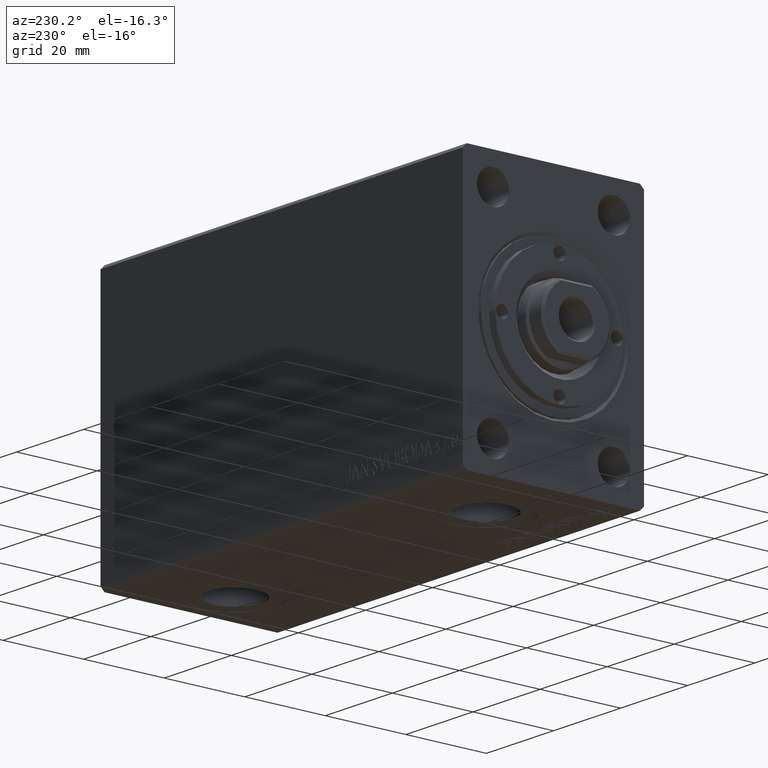
[diagram: clean part render]
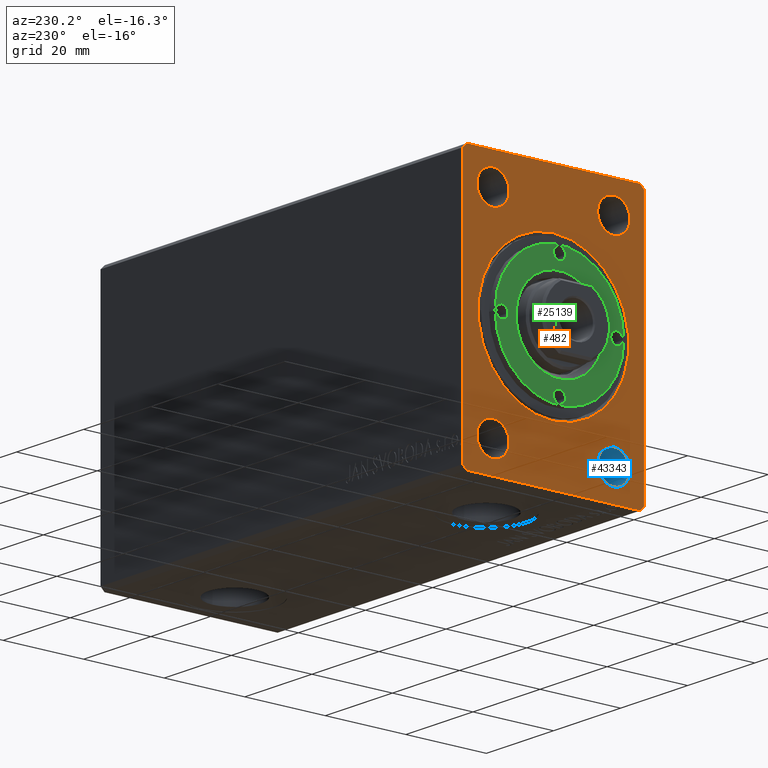
[diagram: same view with three faces highlighted in distinct colors, each labeled with its STEP entity id]
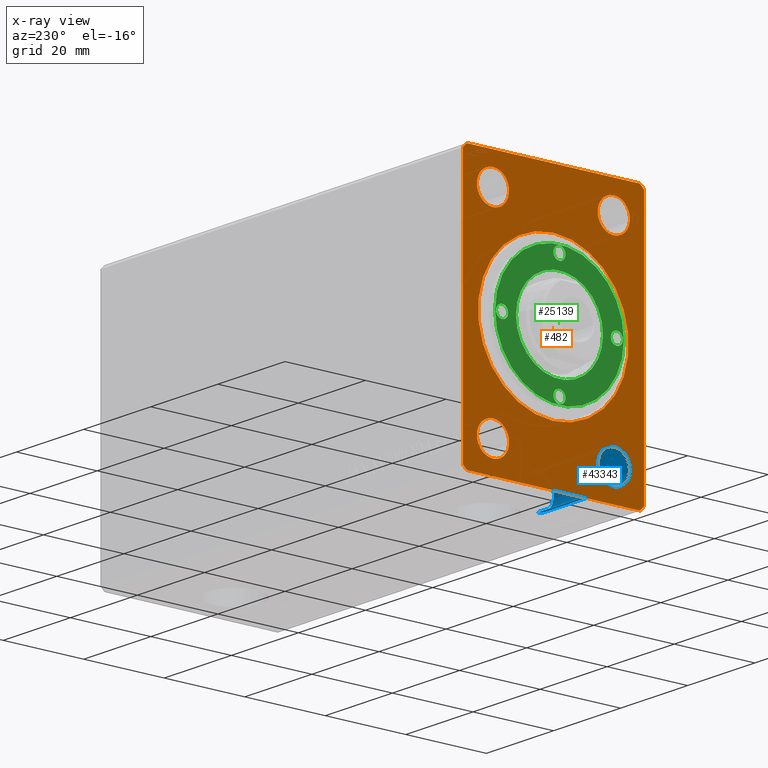
[diagram: x-ray of the same camera — body ghosted, the three highlighted faces saturated]
A machine part, auxiliary view with three faces highlighted in distinct colors.
The next image is the same camera in x-ray (body ghosted, the three faces saturated) — at least one of them is partly hidden behind the body in this view.
Their STEP definitions:

[orange] entity #482 — the highlighted planar face has unit normal (1, 0, 0).
#143 = EDGE_LOOP ( 'NONE', ( #20498, #15391 ) ) ;
#187 = EDGE_CURVE ( 'NONE', #36268, #21619, #4880, .T. ) ;
#482 = ADVANCED_FACE ( 'NONE', ( #41259, #10670, #868, #37937, #14461, #38152 ), #20950, .F. ) ;
#735 = VECTOR ( 'NONE', #25298, 1000.000000000000000 ) ;
#868 = FACE_BOUND ( 'NONE', #19703, .T. ) ;
#2572 = CIRCLE ( 'NONE', #33242, 4.000000000000000000 ) ;
#2690 = VECTOR ( 'NONE', #26168, 1000.000000000000000 ) ;
#2761 = CARTESIAN_POINT ( 'NONE',  ( 0.000000000000000000, -21.50000000000001421, 32.50000000000000000 ) ) ;
#2956 = CARTESIAN_POINT ( 'NONE',  ( 0.000000000000000000, 22.49999999999999645, -31.50000000000000000 ) ) ;
#3061 = CARTESIAN_POINT ( 'NONE',  ( 3.061616997868395467E-16, -14.99999999999999645, 20.99999999999999645 ) ) ;
#3231 = LINE ( 'NONE', #34270, #26568 ) ;
#4111 = DIRECTION ( 'NONE',  ( 1.000000000000000000, 0.000000000000000000, 0.000000000000000000 ) ) ;
#4681 = CARTESIAN_POINT ( 'NONE',  ( 3.061616997868395467E-16, 15.00000000000000355, -20.99999999999999289 ) ) ;
#4723 = EDGE_CURVE ( 'NONE', #29537, #34725, #42481, .T. ) ;
#4880 = CIRCLE ( 'NONE', #22009, 4.000000000000000000 ) ;
#5494 = VERTEX_POINT ( 'NONE', #9018 ) ;
#6039 = VERTEX_POINT ( 'NONE', #20932 ) ;
#6501 = DIRECTION ( 'NONE',  ( 0.000000000000000000, 0.000000000000000000, 1.000000000000000000 ) ) ;
#6515 = DIRECTION ( 'NONE',  ( -1.000000000000000000, -0.000000000000000000, -0.000000000000000000 ) ) ;
#7522 = EDGE_LOOP ( 'NONE', ( #23261, #38858 ) ) ;
#7642 = DIRECTION ( 'NONE',  ( 0.000000000000000000, 0.000000000000000000, -1.000000000000000000 ) ) ;
#7801 = ORIENTED_EDGE ( 'NONE', *, *, #20824, .T. ) ;
#8024 = VERTEX_POINT ( 'NONE', #25623 ) ;
#8497 = DIRECTION ( 'NONE',  ( -1.000000000000000000, -0.000000000000000000, -0.000000000000000000 ) ) ;
#9018 = CARTESIAN_POINT ( 'NONE',  ( 0.000000000000000000, -22.50000000000001776, 31.50000000000000000 ) ) ;
#9221 = DIRECTION ( 'NONE',  ( 0.000000000000000000, -0.7071067811865474617, 0.7071067811865474617 ) ) ;
#9626 = CARTESIAN_POINT ( 'NONE',  ( 3.061616997868395467E-16, -14.99999999999999645, -24.99999999999999645 ) ) ;
#9679 = VERTEX_POINT ( 'NONE', #21183 ) ;
#10035 = EDGE_CURVE ( 'NONE', #8024, #35781, #30736, .T. ) ;
#10312 = VECTOR ( 'NONE', #9221, 1000.000000000000114 ) ;
#10507 = DIRECTION ( 'NONE',  ( 0.000000000000000000, 0.000000000000000000, 1.000000000000000000 ) ) ;
#10610 = VERTEX_POINT ( 'NONE', #3061 ) ;
#10630 = CARTESIAN_POINT ( 'NONE',  ( 3.061616997868395467E-16, -14.99999999999999645, 24.99999999999999645 ) ) ;
#10670 = FACE_BOUND ( 'NONE', #7522, .T. ) ;
#11893 = DIRECTION ( 'NONE',  ( 0.000000000000000000, 0.000000000000000000, 1.000000000000000000 ) ) ;
#11995 = EDGE_CURVE ( 'NONE', #34725, #5494, #3231, .T. ) ;
#12354 = LINE ( 'NONE', #25983, #10312 ) ;
#12545 = CARTESIAN_POINT ( 'NONE',  ( 0.000000000000000000, -21.50000000000001776, -32.50000000000000711 ) ) ;
#12630 = ORIENTED_EDGE ( 'NONE', *, *, #26940, .T. ) ;
#12823 = ORIENTED_EDGE ( 'NONE', *, *, #14417, .F. ) ;
#12985 = LINE ( 'NONE', #12545, #2690 ) ;
#13209 = VERTEX_POINT ( 'NONE', #34539 ) ;
#13285 = CIRCLE ( 'NONE', #18992, 18.69999999999996732 ) ;
#13981 = CIRCLE ( 'NONE', #21824, 4.000000000000000000 ) ;
#14417 = EDGE_CURVE ( 'NONE', #36142, #29537, #12354, .T. ) ;
#14461 = FACE_BOUND ( 'NONE', #42011, .T. ) ;
#14556 = CARTESIAN_POINT ( 'NONE',  ( 3.061616997868395467E-16, -14.99999999999999645, -24.99999999999999645 ) ) ;
#14654 = ORIENTED_EDGE ( 'NONE', *, *, #20073, .F. ) ;
#15169 = CARTESIAN_POINT ( 'NONE',  ( 0.000000000000000000, 0.000000000000000000, 0.000000000000000000 ) ) ;
#15235 = CARTESIAN_POINT ( 'NONE',  ( 3.061616997868395467E-16, -14.99999999999999645, 24.99999999999999645 ) ) ;
#15391 = ORIENTED_EDGE ( 'NONE', *, *, #33871, .F. ) ;
#15652 = CARTESIAN_POINT ( 'NONE',  ( 3.061616997868395467E-16, 15.00000000000000355, 21.00000000000000000 ) ) ;
#16355 = DIRECTION ( 'NONE',  ( 0.000000000000000000, 0.7071067811865451302, -0.7071067811865500152 ) ) ;
#16655 = ORIENTED_EDGE ( 'NONE', *, *, #4723, .F. ) ;
#16765 = CARTESIAN_POINT ( 'NONE',  ( 3.061616997868395467E-16, 15.00000000000000355, 25.00000000000000000 ) ) ;
#17071 = CARTESIAN_POINT ( 'NONE',  ( 0.000000000000000000, 21.49999999999999645, 32.50000000000000000 ) ) ;
#17444 = ORIENTED_EDGE ( 'NONE', *, *, #10035, .F. ) ;
#17929 = EDGE_CURVE ( 'NONE', #35781, #8024, #2572, .T. ) ;
#18238 = EDGE_CURVE ( 'NONE', #31792, #30461, #13981, .T. ) ;
#18331 = EDGE_CURVE ( 'NONE', #30461, #31792, #38227, .T. ) ;
#18992 = AXIS2_PLACEMENT_3D ( 'NONE', #15169, #28818, #7642 ) ;
#19155 = CARTESIAN_POINT ( 'NONE',  ( 3.061616997868395467E-16, -14.99999999999999645, 28.99999999999999645 ) ) ;
#19703 = EDGE_LOOP ( 'NONE', ( #27040, #22118 ) ) ;
#20073 = EDGE_CURVE ( 'NONE', #42646, #36142, #40242, .T. ) ;
#20349 = DIRECTION ( 'NONE',  ( 0.000000000000000000, 0.7071067811865474617, 0.7071067811865474617 ) ) ;
#20498 = ORIENTED_EDGE ( 'NONE', *, *, #34308, .F. ) ;
#20824 = EDGE_CURVE ( 'NONE', #13209, #31104, #21891, .T. ) ;
#20932 = CARTESIAN_POINT ( 'NONE',  ( 0.000000000000000000, 21.49999999999999645, -32.50000000000000000 ) ) ;
#20950 = PLANE ( 'NONE',  #23455 ) ;
#21171 = DIRECTION ( 'NONE',  ( 0.000000000000000000, 0.000000000000000000, -1.000000000000000000 ) ) ;
#21183 = CARTESIAN_POINT ( 'NONE',  ( 0.000000000000000000, -22.50000000000001421, -31.50000000000000711 ) ) ;
#21432 = AXIS2_PLACEMENT_3D ( 'NONE', #16765, #30411, #23909 ) ;
#21619 = VERTEX_POINT ( 'NONE', #39842 ) ;
#21704 = DIRECTION ( 'NONE',  ( -1.000000000000000000, -0.000000000000000000, -0.000000000000000000 ) ) ;
#21757 = DIRECTION ( 'NONE',  ( 0.000000000000000000, 5.507058653894625853E-17, -1.000000000000000000 ) ) ;
#21824 = AXIS2_PLACEMENT_3D ( 'NONE', #14556, #21704, #28197 ) ;
#21891 = CIRCLE ( 'NONE', #29762, 18.69999999999996732 ) ;
#21895 = EDGE_CURVE ( 'NONE', #34299, #6039, #12985, .T. ) ;
#22009 = AXIS2_PLACEMENT_3D ( 'NONE', #27507, #6515, #10507 ) ;
#22118 = ORIENTED_EDGE ( 'NONE', *, *, #32129, .F. ) ;
#22230 = ORIENTED_EDGE ( 'NONE', *, *, #39689, .F. ) ;
#22857 = ORIENTED_EDGE ( 'NONE', *, *, #17929, .F. ) ;
#22874 = ORIENTED_EDGE ( 'NONE', *, *, #11995, .F. ) ;
#23261 = ORIENTED_EDGE ( 'NONE', *, *, #18331, .F. ) ;
#23455 = AXIS2_PLACEMENT_3D ( 'NONE', #24511, #28104, #21171 ) ;
#23909 = DIRECTION ( 'NONE',  ( 0.000000000000000000, 0.000000000000000000, 1.000000000000000000 ) ) ;
#24233 = ORIENTED_EDGE ( 'NONE', *, *, #21895, .F. ) ;
#24511 = CARTESIAN_POINT ( 'NONE',  ( 0.000000000000000000, 0.000000000000000000, 0.000000000000000000 ) ) ;
#25298 = DIRECTION ( 'NONE',  ( 0.000000000000000000, -1.000000000000000000, 0.000000000000000000 ) ) ;
#25537 = ORIENTED_EDGE ( 'NONE', *, *, #33900, .F. ) ;
#25623 = CARTESIAN_POINT ( 'NONE',  ( 3.061616997868395467E-16, 15.00000000000000355, 29.00000000000000000 ) ) ;
#25631 = CIRCLE ( 'NONE', #28476, 4.000000000000000000 ) ;
#25983 = CARTESIAN_POINT ( 'NONE',  ( 0.000000000000000000, 22.49999999999999645, 31.50000000000000000 ) ) ;
#26168 = DIRECTION ( 'NONE',  ( 0.000000000000000000, 1.000000000000000000, 1.613696256722610912E-16 ) ) ;
#26568 = VECTOR ( 'NONE', #37830, 1000.000000000000114 ) ;
#26836 = DIRECTION ( 'NONE',  ( -1.000000000000000000, -0.000000000000000000, -0.000000000000000000 ) ) ;
#26940 = EDGE_CURVE ( 'NONE', #31104, #13209, #13285, .T. ) ;
#27040 = ORIENTED_EDGE ( 'NONE', *, *, #187, .F. ) ;
#27436 = CARTESIAN_POINT ( 'NONE',  ( 3.061616997868395467E-16, -14.99999999999999645, -28.99999999999999645 ) ) ;
#27446 = CIRCLE ( 'NONE', #38849, 4.000000000000000000 ) ;
#27507 = CARTESIAN_POINT ( 'NONE',  ( 3.061616997868395467E-16, 15.00000000000000355, -24.99999999999999289 ) ) ;
#28018 = DIRECTION ( 'NONE',  ( 0.000000000000000000, 0.000000000000000000, -1.000000000000000000 ) ) ;
#28104 = DIRECTION ( 'NONE',  ( 1.000000000000000000, 0.000000000000000000, 0.000000000000000000 ) ) ;
#28197 = DIRECTION ( 'NONE',  ( 0.000000000000000000, 0.000000000000000000, 1.000000000000000000 ) ) ;
#28472 = LINE ( 'NONE', #38746, #42202 ) ;
#28476 = AXIS2_PLACEMENT_3D ( 'NONE', #15235, #32694, #11893 ) ;
#28818 = DIRECTION ( 'NONE',  ( 1.000000000000000000, 0.000000000000000000, 0.000000000000000000 ) ) ;
#29224 = VECTOR ( 'NONE', #16355, 1000.000000000000114 ) ;
#29537 = VERTEX_POINT ( 'NONE', #17071 ) ;
#29762 = AXIS2_PLACEMENT_3D ( 'NONE', #34724, #4111, #28018 ) ;
#30002 = CARTESIAN_POINT ( 'NONE',  ( 0.000000000000000000, -22.50000000000001421, -31.50000000000000711 ) ) ;
#30411 = DIRECTION ( 'NONE',  ( -1.000000000000000000, -0.000000000000000000, -0.000000000000000000 ) ) ;
#30461 = VERTEX_POINT ( 'NONE', #35884 ) ;
#30656 = CIRCLE ( 'NONE', #38482, 4.000000000000000000 ) ;
#30736 = CIRCLE ( 'NONE', #21432, 4.000000000000000000 ) ;
#30768 = DIRECTION ( 'NONE',  ( 0.000000000000000000, 0.000000000000000000, 1.000000000000000000 ) ) ;
#30827 = CARTESIAN_POINT ( 'NONE',  ( 0.000000000000000000, 22.49999999999999645, -31.50000000000000000 ) ) ;
#30853 = LINE ( 'NONE', #37987, #38184 ) ;
#30857 = CARTESIAN_POINT ( 'NONE',  ( 0.000000000000000000, 22.49999999999999645, 31.50000000000000000 ) ) ;
#31104 = VERTEX_POINT ( 'NONE', #43237 ) ;
#31553 = CARTESIAN_POINT ( 'NONE',  ( 3.061616997868395467E-16, 15.00000000000000355, -24.99999999999999289 ) ) ;
#31578 = EDGE_LOOP ( 'NONE', ( #17444, #22857 ) ) ;
#31792 = VERTEX_POINT ( 'NONE', #27436 ) ;
#31849 = VECTOR ( 'NONE', #34217, 1000.000000000000000 ) ;
#32129 = EDGE_CURVE ( 'NONE', #21619, #36268, #27446, .T. ) ;
#32304 = EDGE_CURVE ( 'NONE', #6039, #42646, #30853, .T. ) ;
#32694 = DIRECTION ( 'NONE',  ( -1.000000000000000000, -0.000000000000000000, -0.000000000000000000 ) ) ;
#32782 = ORIENTED_EDGE ( 'NONE', *, *, #32304, .F. ) ;
#33242 = AXIS2_PLACEMENT_3D ( 'NONE', #36442, #8497, #42885 ) ;
#33871 = EDGE_CURVE ( 'NONE', #10610, #37334, #25631, .T. ) ;
#33900 = EDGE_CURVE ( 'NONE', #9679, #34299, #42930, .T. ) ;
#34217 = DIRECTION ( 'NONE',  ( 0.000000000000000000, 0.000000000000000000, 1.000000000000000000 ) ) ;
#34270 = CARTESIAN_POINT ( 'NONE',  ( 0.000000000000000000, -21.50000000000001421, 32.50000000000000000 ) ) ;
#34299 = VERTEX_POINT ( 'NONE', #43927 ) ;
#34308 = EDGE_CURVE ( 'NONE', #37334, #10610, #30656, .T. ) ;
#34539 = CARTESIAN_POINT ( 'NONE',  ( -1.084202172485504434E-16, 0.000000000000000000, 18.69999999999996732 ) ) ;
#34656 = AXIS2_PLACEMENT_3D ( 'NONE', #9626, #26836, #6501 ) ;
#34724 = CARTESIAN_POINT ( 'NONE',  ( 0.000000000000000000, 0.000000000000000000, 0.000000000000000000 ) ) ;
#34725 = VERTEX_POINT ( 'NONE', #2761 ) ;
#35781 = VERTEX_POINT ( 'NONE', #15652 ) ;
#35884 = CARTESIAN_POINT ( 'NONE',  ( 3.061616997868395467E-16, -14.99999999999999645, -20.99999999999999645 ) ) ;
#36142 = VERTEX_POINT ( 'NONE', #30857 ) ;
#36268 = VERTEX_POINT ( 'NONE', #4681 ) ;
#36442 = CARTESIAN_POINT ( 'NONE',  ( 3.061616997868395467E-16, 15.00000000000000355, 25.00000000000000000 ) ) ;
#37334 = VERTEX_POINT ( 'NONE', #19155 ) ;
#37830 = DIRECTION ( 'NONE',  ( 0.000000000000000000, -0.7071067811865474617, -0.7071067811865474617 ) ) ;
#37937 = FACE_BOUND ( 'NONE', #143, .T. ) ;
#37987 = CARTESIAN_POINT ( 'NONE',  ( 0.000000000000000000, 21.49999999999999645, -32.50000000000000000 ) ) ;
#38152 = FACE_OUTER_BOUND ( 'NONE', #43451, .T. ) ;
#38184 = VECTOR ( 'NONE', #20349, 1000.000000000000114 ) ;
#38227 = CIRCLE ( 'NONE', #34656, 4.000000000000000000 ) ;
#38473 = DIRECTION ( 'NONE',  ( -1.000000000000000000, -0.000000000000000000, -0.000000000000000000 ) ) ;
#38482 = AXIS2_PLACEMENT_3D ( 'NONE', #10630, #44142, #30768 ) ;
#38697 = DIRECTION ( 'NONE',  ( 0.000000000000000000, 0.000000000000000000, 1.000000000000000000 ) ) ;
#38746 = CARTESIAN_POINT ( 'NONE',  ( 0.000000000000000000, -22.50000000000001776, 31.50000000000000000 ) ) ;
#38849 = AXIS2_PLACEMENT_3D ( 'NONE', #31553, #38473, #38697 ) ;
#38858 = ORIENTED_EDGE ( 'NONE', *, *, #18238, .F. ) ;
#39689 = EDGE_CURVE ( 'NONE', #5494, #9679, #28472, .T. ) ;
#39842 = CARTESIAN_POINT ( 'NONE',  ( 3.061616997868395467E-16, 15.00000000000000355, -28.99999999999999289 ) ) ;
#40242 = LINE ( 'NONE', #2956, #31849 ) ;
#41259 = FACE_BOUND ( 'NONE', #31578, .T. ) ;
#41820 = CARTESIAN_POINT ( 'NONE',  ( 0.000000000000000000, 21.49999999999999645, 32.50000000000000000 ) ) ;
#42011 = EDGE_LOOP ( 'NONE', ( #7801, #12630 ) ) ;
#42202 = VECTOR ( 'NONE', #21757, 1000.000000000000000 ) ;
#42481 = LINE ( 'NONE', #41820, #735 ) ;
#42646 = VERTEX_POINT ( 'NONE', #30827 ) ;
#42885 = DIRECTION ( 'NONE',  ( 0.000000000000000000, 0.000000000000000000, 1.000000000000000000 ) ) ;
#42930 = LINE ( 'NONE', #30002, #29224 ) ;
#43237 = CARTESIAN_POINT ( 'NONE',  ( -1.084202172485504434E-16, 2.290089514405546166E-15, -18.69999999999996732 ) ) ;
#43451 = EDGE_LOOP ( 'NONE', ( #12823, #14654, #32782, #24233, #25537, #22230, #22874, #16655 ) ) ;
#43927 = CARTESIAN_POINT ( 'NONE',  ( 0.000000000000000000, -21.50000000000001776, -32.50000000000000711 ) ) ;
#44142 = DIRECTION ( 'NONE',  ( -1.000000000000000000, -0.000000000000000000, -0.000000000000000000 ) ) ;

[blue] entity #43343 — the highlighted cylindrical surface (edge-blend (fillet) strip) has radius 4 mm, axis along (-1, -0, -0).
#2146 = LINE ( 'NONE', #8371, #35695 ) ;
#2149 = DIRECTION ( 'NONE',  ( -1.000000000000000000, -0.000000000000000000, -0.000000000000000000 ) ) ;
#3769 = EDGE_CURVE ( 'NONE', #33820, #30461, #24768, .T. ) ;
#4229 = CARTESIAN_POINT ( 'NONE',  ( 0.000000000000000000, -14.99999999999999645, -20.99999999999999645 ) ) ;
#5736 = VECTOR ( 'NONE', #24119, 1000.000000000000000 ) ;
#8371 = CARTESIAN_POINT ( 'NONE',  ( 0.000000000000000000, -14.99999999999999645, -28.99999999999999645 ) ) ;
#9240 = EDGE_CURVE ( 'NONE', #13528, #31792, #2146, .T. ) ;
#9728 = FACE_OUTER_BOUND ( 'NONE', #23960, .T. ) ;
#13528 = VERTEX_POINT ( 'NONE', #42198 ) ;
#13694 = AXIS2_PLACEMENT_3D ( 'NONE', #30074, #43665, #26494 ) ;
#13981 = CIRCLE ( 'NONE', #21824, 4.000000000000000000 ) ;
#14556 = CARTESIAN_POINT ( 'NONE',  ( 3.061616997868395467E-16, -14.99999999999999645, -24.99999999999999645 ) ) ;
#15768 = ORIENTED_EDGE ( 'NONE', *, *, #9240, .T. ) ;
#16181 = EDGE_CURVE ( 'NONE', #13528, #33820, #31754, .T. ) ;
#16190 = CARTESIAN_POINT ( 'NONE',  ( 22.67000000000000171, -14.99999999999999645, -24.99999999999999645 ) ) ;
#16645 = CYLINDRICAL_SURFACE ( 'NONE', #13694, 4.000000000000000000 ) ;
#18238 = EDGE_CURVE ( 'NONE', #31792, #30461, #13981, .T. ) ;
#21704 = DIRECTION ( 'NONE',  ( -1.000000000000000000, -0.000000000000000000, -0.000000000000000000 ) ) ;
#21824 = AXIS2_PLACEMENT_3D ( 'NONE', #14556, #21704, #28197 ) ;
#23113 = DIRECTION ( 'NONE',  ( 0.000000000000000000, 0.000000000000000000, 1.000000000000000000 ) ) ;
#23960 = EDGE_LOOP ( 'NONE', ( #32904, #15768, #33209, #28644 ) ) ;
#24119 = DIRECTION ( 'NONE',  ( -1.000000000000000000, -0.000000000000000000, -0.000000000000000000 ) ) ;
#24768 = LINE ( 'NONE', #4229, #5736 ) ;
#25753 = CARTESIAN_POINT ( 'NONE',  ( 22.67000000000000171, -14.99999999999999645, -21.00000000000000000 ) ) ;
#26494 = DIRECTION ( 'NONE',  ( 0.000000000000000000, 0.000000000000000000, 1.000000000000000000 ) ) ;
#27436 = CARTESIAN_POINT ( 'NONE',  ( 3.061616997868395467E-16, -14.99999999999999645, -28.99999999999999645 ) ) ;
#28197 = DIRECTION ( 'NONE',  ( 0.000000000000000000, 0.000000000000000000, 1.000000000000000000 ) ) ;
#28644 = ORIENTED_EDGE ( 'NONE', *, *, #3769, .F. ) ;
#29164 = DIRECTION ( 'NONE',  ( -1.000000000000000000, -0.000000000000000000, -0.000000000000000000 ) ) ;
#30074 = CARTESIAN_POINT ( 'NONE',  ( 0.000000000000000000, -14.99999999999999645, -24.99999999999999645 ) ) ;
#30461 = VERTEX_POINT ( 'NONE', #35884 ) ;
#31754 = CIRCLE ( 'NONE', #41011, 3.999999999999996447 ) ;
#31792 = VERTEX_POINT ( 'NONE', #27436 ) ;
#32904 = ORIENTED_EDGE ( 'NONE', *, *, #16181, .F. ) ;
#33209 = ORIENTED_EDGE ( 'NONE', *, *, #18238, .T. ) ;
#33820 = VERTEX_POINT ( 'NONE', #25753 ) ;
#35695 = VECTOR ( 'NONE', #29164, 1000.000000000000000 ) ;
#35884 = CARTESIAN_POINT ( 'NONE',  ( 3.061616997868395467E-16, -14.99999999999999645, -20.99999999999999645 ) ) ;
#41011 = AXIS2_PLACEMENT_3D ( 'NONE', #16190, #2149, #23113 ) ;
#42198 = CARTESIAN_POINT ( 'NONE',  ( 22.67000000000000171, -14.99999999999999645, -28.99999999999999289 ) ) ;
#43343 = ADVANCED_FACE ( 'NONE', ( #9728 ), #16645, .F. ) ;
#43665 = DIRECTION ( 'NONE',  ( -1.000000000000000000, -0.000000000000000000, -0.000000000000000000 ) ) ;

[green] entity #25139 — the highlighted planar face has unit normal (-1, 0, 0).
#945 = EDGE_CURVE ( 'NONE', #3467, #30527, #43406, .T. ) ;
#1053 = FACE_BOUND ( 'NONE', #14610, .T. ) ;
#1615 = CARTESIAN_POINT ( 'NONE',  ( 0.000000000000000000, 14.25000000000000000, 6.999999999999999112 ) ) ;
#1621 = DIRECTION ( 'NONE',  ( -0.000000000000000000, -0.000000000000000000, 1.000000000000000000 ) ) ;
#2173 = CIRCLE ( 'NONE', #25716, 1.499999999999996225 ) ;
#2841 = AXIS2_PLACEMENT_3D ( 'NONE', #38098, #27397, #20892 ) ;
#3022 = DIRECTION ( 'NONE',  ( -0.000000000000000000, -0.000000000000000000, 1.000000000000000000 ) ) ;
#3123 = VERTEX_POINT ( 'NONE', #42839 ) ;
#3467 = VERTEX_POINT ( 'NONE', #29644 ) ;
#3644 = EDGE_LOOP ( 'NONE', ( #28228, #3685 ) ) ;
#3685 = ORIENTED_EDGE ( 'NONE', *, *, #23713, .F. ) ;
#3951 = FACE_OUTER_BOUND ( 'NONE', #43902, .T. ) ;
#4063 = AXIS2_PLACEMENT_3D ( 'NONE', #29137, #29367, #33169 ) ;
#4236 = VERTEX_POINT ( 'NONE', #16248 ) ;
#4450 = AXIS2_PLACEMENT_3D ( 'NONE', #16668, #9311, #6626 ) ;
#4512 = ORIENTED_EDGE ( 'NONE', *, *, #25877, .F. ) ;
#5387 = DIRECTION ( 'NONE',  ( 1.000000000000000000, 0.000000000000000000, 0.000000000000000000 ) ) ;
#5395 = DIRECTION ( 'NONE',  ( 1.000000000000000000, 0.000000000000000000, 0.000000000000000000 ) ) ;
#5591 = DIRECTION ( 'NONE',  ( 1.000000000000000000, 0.000000000000000000, 0.000000000000000000 ) ) ;
#5776 = EDGE_CURVE ( 'NONE', #8069, #26889, #41280, .T. ) ;
#6604 = EDGE_CURVE ( 'NONE', #15978, #12610, #41310, .T. ) ;
#6626 = DIRECTION ( 'NONE',  ( 1.000000000000000000, 0.000000000000000000, 0.000000000000000000 ) ) ;
#6838 = EDGE_CURVE ( 'NONE', #12610, #15978, #26364, .T. ) ;
#6907 = EDGE_CURVE ( 'NONE', #30527, #3467, #24901, .T. ) ;
#7295 = FACE_BOUND ( 'NONE', #35392, .T. ) ;
#7612 = EDGE_CURVE ( 'NONE', #3123, #4236, #24932, .T. ) ;
#7944 = PLANE ( 'NONE',  #9141 ) ;
#8028 = CARTESIAN_POINT ( 'NONE',  ( -14.25000000000000000, 0.000000000000000000, 6.999999999999999112 ) ) ;
#8069 = VERTEX_POINT ( 'NONE', #36803 ) ;
#8161 = FACE_BOUND ( 'NONE', #16801, .T. ) ;
#8230 = AXIS2_PLACEMENT_3D ( 'NONE', #15214, #42903, #5395 ) ;
#8303 = ORIENTED_EDGE ( 'NONE', *, *, #6604, .F. ) ;
#8367 = DIRECTION ( 'NONE',  ( 1.000000000000000000, 0.000000000000000000, 0.000000000000000000 ) ) ;
#9067 = ORIENTED_EDGE ( 'NONE', *, *, #7612, .F. ) ;
#9141 = AXIS2_PLACEMENT_3D ( 'NONE', #41879, #18437, #11295 ) ;
#9311 = DIRECTION ( 'NONE',  ( -0.000000000000000000, -0.000000000000000000, 1.000000000000000000 ) ) ;
#9380 = CARTESIAN_POINT ( 'NONE',  ( 15.74999999999999645, 0.000000000000000000, 6.999999999999999112 ) ) ;
#9435 = EDGE_CURVE ( 'NONE', #23592, #38805, #2173, .T. ) ;
#9484 = CARTESIAN_POINT ( 'NONE',  ( 14.25000000000000000, 0.000000000000000000, 6.999999999999999112 ) ) ;
#9655 = AXIS2_PLACEMENT_3D ( 'NONE', #43934, #36825, #22966 ) ;
#10378 = CIRCLE ( 'NONE', #9655, 16.00000000000000000 ) ;
#10596 = ORIENTED_EDGE ( 'NONE', *, *, #6838, .F. ) ;
#11023 = CARTESIAN_POINT ( 'NONE',  ( 10.79999999999997584, 0.000000000000000000, 6.999999999999999112 ) ) ;
#11295 = DIRECTION ( 'NONE',  ( 1.000000000000000000, 0.000000000000000000, -0.000000000000000000 ) ) ;
#11594 = EDGE_CURVE ( 'NONE', #38805, #23592, #16578, .T. ) ;
#11933 = DIRECTION ( 'NONE',  ( -0.000000000000000000, -0.000000000000000000, -1.000000000000000000 ) ) ;
#12610 = VERTEX_POINT ( 'NONE', #17977 ) ;
#12741 = CARTESIAN_POINT ( 'NONE',  ( 0.000000000000000000, 14.25000000000000000, 6.999999999999999112 ) ) ;
#13516 = ORIENTED_EDGE ( 'NONE', *, *, #945, .T. ) ;
#13558 = ORIENTED_EDGE ( 'NONE', *, *, #11594, .F. ) ;
#14400 = CARTESIAN_POINT ( 'NONE',  ( 0.000000000000000000, 0.000000000000000000, 6.999999999999999112 ) ) ;
#14610 = EDGE_LOOP ( 'NONE', ( #9067, #4512 ) ) ;
#14765 = DIRECTION ( 'NONE',  ( -0.000000000000000000, -0.000000000000000000, 1.000000000000000000 ) ) ;
#14998 = ORIENTED_EDGE ( 'NONE', *, *, #9435, .F. ) ;
#15005 = ORIENTED_EDGE ( 'NONE', *, *, #17143, .T. ) ;
#15214 = CARTESIAN_POINT ( 'NONE',  ( -14.25000000000000000, 0.000000000000000000, 6.999999999999999112 ) ) ;
#15553 = EDGE_LOOP ( 'NONE', ( #41796, #13516 ) ) ;
#15978 = VERTEX_POINT ( 'NONE', #32415 ) ;
#16248 = CARTESIAN_POINT ( 'NONE',  ( -15.74999999999999645, 1.836970198721025004E-16, 6.999999999999999112 ) ) ;
#16578 = CIRCLE ( 'NONE', #4450, 1.499999999999996225 ) ;
#16668 = CARTESIAN_POINT ( 'NONE',  ( 14.25000000000000000, 0.000000000000000000, 6.999999999999999112 ) ) ;
#16801 = EDGE_LOOP ( 'NONE', ( #10596, #8303 ) ) ;
#17143 = EDGE_CURVE ( 'NONE', #17257, #41786, #10378, .T. ) ;
#17257 = VERTEX_POINT ( 'NONE', #27206 ) ;
#17977 = CARTESIAN_POINT ( 'NONE',  ( 1.499999999999996891, -14.25000000000000000, 6.999999999999999112 ) ) ;
#18437 = DIRECTION ( 'NONE',  ( 0.000000000000000000, 0.000000000000000000, 1.000000000000000000 ) ) ;
#20892 = DIRECTION ( 'NONE',  ( 1.000000000000000000, 0.000000000000000000, 0.000000000000000000 ) ) ;
#21220 = DIRECTION ( 'NONE',  ( -0.000000000000000000, -0.000000000000000000, 1.000000000000000000 ) ) ;
#21586 = EDGE_CURVE ( 'NONE', #41786, #17257, #31879, .T. ) ;
#21665 = DIRECTION ( 'NONE',  ( 1.000000000000000000, 0.000000000000000000, 0.000000000000000000 ) ) ;
#21949 = AXIS2_PLACEMENT_3D ( 'NONE', #12741, #26586, #5591 ) ;
#22352 = CARTESIAN_POINT ( 'NONE',  ( -16.00000000000000000, 0.000000000000000000, 6.999999999999999112 ) ) ;
#22966 = DIRECTION ( 'NONE',  ( 1.000000000000000000, 0.000000000000000000, 0.000000000000000000 ) ) ;
#23311 = CARTESIAN_POINT ( 'NONE',  ( 12.75000000000000355, 1.836970198721025004E-16, 6.999999999999999112 ) ) ;
#23592 = VERTEX_POINT ( 'NONE', #9380 ) ;
#23713 = EDGE_CURVE ( 'NONE', #26889, #8069, #24085, .T. ) ;
#23756 = CARTESIAN_POINT ( 'NONE',  ( -1.499999999999996891, 14.25000000000000000, 6.999999999999999112 ) ) ;
#24085 = CIRCLE ( 'NONE', #21949, 1.499999999999996891 ) ;
#24179 = AXIS2_PLACEMENT_3D ( 'NONE', #25338, #38978, #8367 ) ;
#24901 = CIRCLE ( 'NONE', #37769, 10.79999999999997584 ) ;
#24921 = FACE_BOUND ( 'NONE', #15553, .T. ) ;
#24932 = CIRCLE ( 'NONE', #36385, 1.499999999999996225 ) ;
#25139 = ADVANCED_FACE ( 'NONE', ( #1053, #41448, #7295, #8161, #24921, #3951 ), #7944, .T. ) ;
#25338 = CARTESIAN_POINT ( 'NONE',  ( 0.000000000000000000, 0.000000000000000000, 6.999999999999999112 ) ) ;
#25716 = AXIS2_PLACEMENT_3D ( 'NONE', #9484, #3022, #30051 ) ;
#25877 = EDGE_CURVE ( 'NONE', #4236, #3123, #43909, .T. ) ;
#26364 = CIRCLE ( 'NONE', #2841, 1.499999999999996891 ) ;
#26586 = DIRECTION ( 'NONE',  ( -0.000000000000000000, -0.000000000000000000, 1.000000000000000000 ) ) ;
#26772 = ORIENTED_EDGE ( 'NONE', *, *, #21586, .T. ) ;
#26889 = VERTEX_POINT ( 'NONE', #23756 ) ;
#27206 = CARTESIAN_POINT ( 'NONE',  ( 16.00000000000000000, 1.959434878635765131E-15, 6.999999999999999112 ) ) ;
#27397 = DIRECTION ( 'NONE',  ( -0.000000000000000000, -0.000000000000000000, 1.000000000000000000 ) ) ;
#27807 = CARTESIAN_POINT ( 'NONE',  ( 0.000000000000000000, -14.25000000000000000, 6.999999999999999112 ) ) ;
#28228 = ORIENTED_EDGE ( 'NONE', *, *, #5776, .F. ) ;
#28704 = DIRECTION ( 'NONE',  ( 1.000000000000000000, 0.000000000000000000, 0.000000000000000000 ) ) ;
#29137 = CARTESIAN_POINT ( 'NONE',  ( 0.000000000000000000, 0.000000000000000000, 6.999999999999999112 ) ) ;
#29171 = AXIS2_PLACEMENT_3D ( 'NONE', #1615, #14765, #5387 ) ;
#29367 = DIRECTION ( 'NONE',  ( 0.000000000000000000, 0.000000000000000000, 1.000000000000000000 ) ) ;
#29644 = CARTESIAN_POINT ( 'NONE',  ( -10.79999999999997584, 1.322618543079138535E-15, 6.999999999999999112 ) ) ;
#30051 = DIRECTION ( 'NONE',  ( 1.000000000000000000, 0.000000000000000000, 0.000000000000000000 ) ) ;
#30527 = VERTEX_POINT ( 'NONE', #11023 ) ;
#31879 = CIRCLE ( 'NONE', #4063, 16.00000000000000000 ) ;
#32415 = CARTESIAN_POINT ( 'NONE',  ( -1.499999999999996891, -14.25000000000000000, 6.999999999999999112 ) ) ;
#33169 = DIRECTION ( 'NONE',  ( 1.000000000000000000, 0.000000000000000000, 0.000000000000000000 ) ) ;
#35392 = EDGE_LOOP ( 'NONE', ( #14998, #13558 ) ) ;
#35557 = DIRECTION ( 'NONE',  ( 1.000000000000000000, 0.000000000000000000, 0.000000000000000000 ) ) ;
#36385 = AXIS2_PLACEMENT_3D ( 'NONE', #8028, #21220, #21665 ) ;
#36803 = CARTESIAN_POINT ( 'NONE',  ( 1.499999999999996891, 14.25000000000000000, 6.999999999999999112 ) ) ;
#36825 = DIRECTION ( 'NONE',  ( 0.000000000000000000, 0.000000000000000000, 1.000000000000000000 ) ) ;
#37769 = AXIS2_PLACEMENT_3D ( 'NONE', #14400, #11933, #28704 ) ;
#38098 = CARTESIAN_POINT ( 'NONE',  ( 0.000000000000000000, -14.25000000000000000, 6.999999999999999112 ) ) ;
#38805 = VERTEX_POINT ( 'NONE', #23311 ) ;
#38978 = DIRECTION ( 'NONE',  ( -0.000000000000000000, -0.000000000000000000, -1.000000000000000000 ) ) ;
#39198 = AXIS2_PLACEMENT_3D ( 'NONE', #27807, #1621, #35557 ) ;
#41280 = CIRCLE ( 'NONE', #29171, 1.499999999999996891 ) ;
#41310 = CIRCLE ( 'NONE', #39198, 1.499999999999996891 ) ;
#41448 = FACE_BOUND ( 'NONE', #3644, .T. ) ;
#41786 = VERTEX_POINT ( 'NONE', #22352 ) ;
#41796 = ORIENTED_EDGE ( 'NONE', *, *, #6907, .T. ) ;
#41879 = CARTESIAN_POINT ( 'NONE',  ( 0.000000000000000000, 0.000000000000000000, 6.999999999999999112 ) ) ;
#42839 = CARTESIAN_POINT ( 'NONE',  ( -12.75000000000000355, 0.000000000000000000, 6.999999999999999112 ) ) ;
#42903 = DIRECTION ( 'NONE',  ( -0.000000000000000000, -0.000000000000000000, 1.000000000000000000 ) ) ;
#43406 = CIRCLE ( 'NONE', #24179, 10.79999999999997584 ) ;
#43902 = EDGE_LOOP ( 'NONE', ( #26772, #15005 ) ) ;
#43909 = CIRCLE ( 'NONE', #8230, 1.499999999999996225 ) ;
#43934 = CARTESIAN_POINT ( 'NONE',  ( 0.000000000000000000, 0.000000000000000000, 6.999999999999999112 ) ) ;